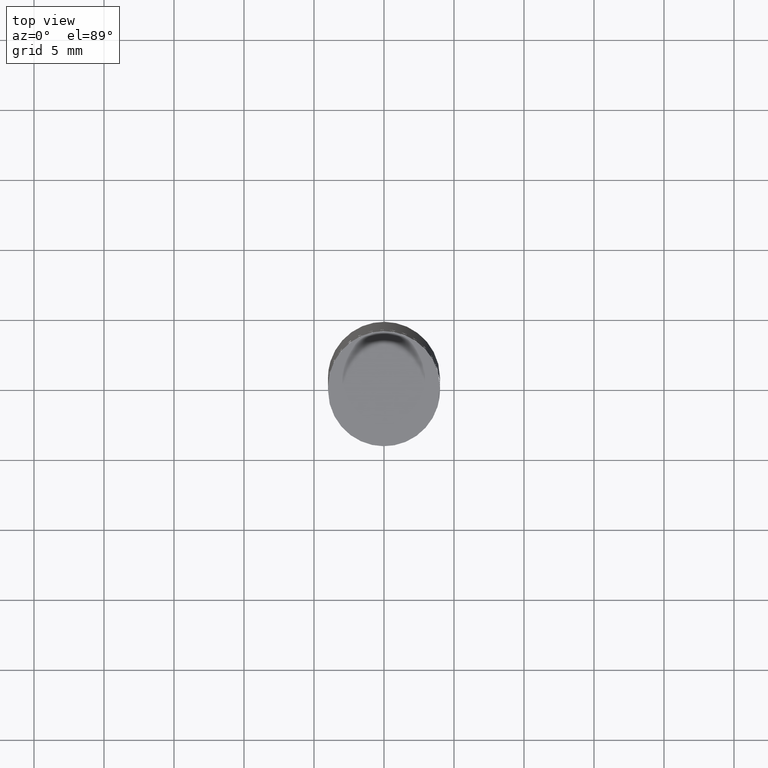
[diagram: clean part render]
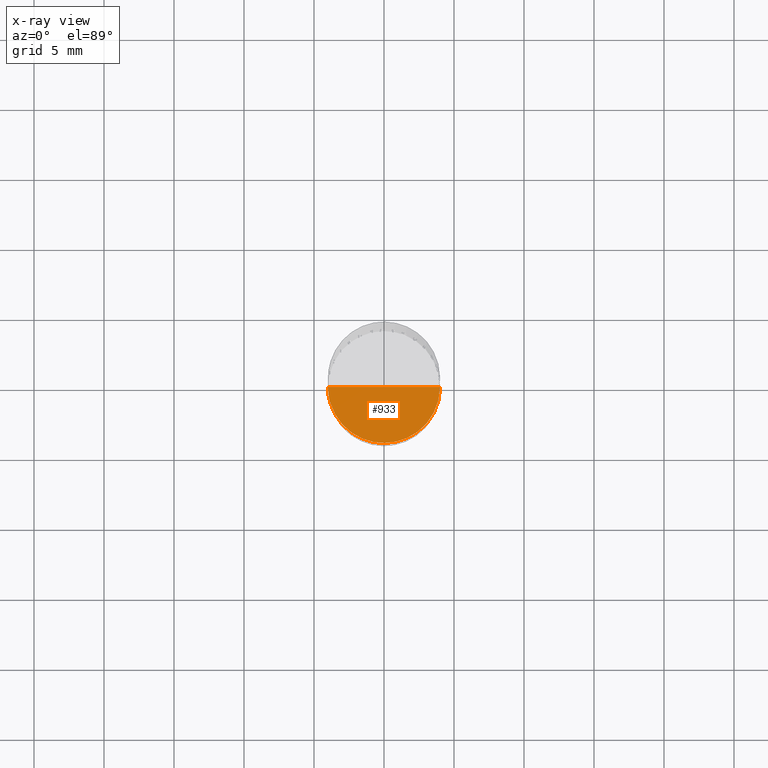
[diagram: x-ray — body ghosted, one internal face saturated and labeled with its STEP entity id]
A machine part, top view, then the same camera in x-ray: the body is ghosted and one INTERNAL B-rep face — a face not visible from any outside direction — is saturated and labeled: STEP entity #933.
In plain terms, the highlighted face is a freeform B-spline surface patch.
Its self-contained STEP definition (entity closure, byte-faithful):
#787=CARTESIAN_POINT('',(4.0,0.0,-6.0));
#791=CARTESIAN_POINT('',(-4.0,0.0,-6.0));
#792=CARTESIAN_POINT('',(0.0,0.0,-6.0));
#795=CARTESIAN_POINT('',(-4.0,-4.0,-6.0));
#796=CARTESIAN_POINT('',(0.0,-4.0,-6.0));
#797=CARTESIAN_POINT('',(4.0,-4.0,-6.0));
#918=(
BOUNDED_SURFACE()
B_SPLINE_SURFACE(1,2,(
(#791,#795,#796,#797,#787),
(#792,#792,#792,#792,#792)
), .UNSPECIFIED.,.F.,.F.,.F.)
B_SPLINE_SURFACE_WITH_KNOTS((2,2),(3,2,3),(
0.0,1.0),(
0.0,0.5,1.0), .UNSPECIFIED.)
GEOMETRIC_REPRESENTATION_ITEM()
RATIONAL_B_SPLINE_SURFACE(((1.0,0.707106781187,1.0,0.707106781187,1.0),
(1.0,0.707106781187,1.0,0.707106781187,1.0)
))
REPRESENTATION_ITEM('')
SURFACE()
);
#919=(
BOUNDED_CURVE()
B_SPLINE_CURVE(2,(#787,#797,#796,#795,#791),.UNSPECIFIED.,.F.,.F.)
B_SPLINE_CURVE_WITH_KNOTS((3,2,3),
(0.0,0.5,1.0),.UNSPECIFIED.)
CURVE()
GEOMETRIC_REPRESENTATION_ITEM()
RATIONAL_B_SPLINE_CURVE((1.0,0.707106781187,1.0,0.707106781187,1.0))
REPRESENTATION_ITEM('')
);
#920=(
BOUNDED_CURVE()
B_SPLINE_CURVE(1,(#791,#792),.UNSPECIFIED.,.F.,.F.)
B_SPLINE_CURVE_WITH_KNOTS((2,2),
(0.0,1.0),.UNSPECIFIED.)
CURVE()
GEOMETRIC_REPRESENTATION_ITEM()
RATIONAL_B_SPLINE_CURVE((1.0,1.0))
REPRESENTATION_ITEM('')
);
#921=(
BOUNDED_CURVE()
B_SPLINE_CURVE(1,(#792,#787),.UNSPECIFIED.,.F.,.F.)
B_SPLINE_CURVE_WITH_KNOTS((2,2),
(0.0,1.0),.UNSPECIFIED.)
CURVE()
GEOMETRIC_REPRESENTATION_ITEM()
RATIONAL_B_SPLINE_CURVE((1.0,1.0))
REPRESENTATION_ITEM('')
);
#922=VERTEX_POINT('',#787);
#923=VERTEX_POINT('',#791);
#924=VERTEX_POINT('',#792);
#925=EDGE_CURVE('',#922,#923,#919,.T.);
#926=EDGE_CURVE('',#923,#924,#920,.T.);
#927=EDGE_CURVE('',#924,#922,#921,.T.);
#928=ORIENTED_EDGE('',*,*,#925,.T.);
#929=ORIENTED_EDGE('',*,*,#926,.T.);
#930=ORIENTED_EDGE('',*,*,#927,.T.);
#931=EDGE_LOOP('',(#928,#929,#930));
#932=FACE_OUTER_BOUND('',#931,.T.);
#933=ADVANCED_FACE('',(#932),#918,.T.);